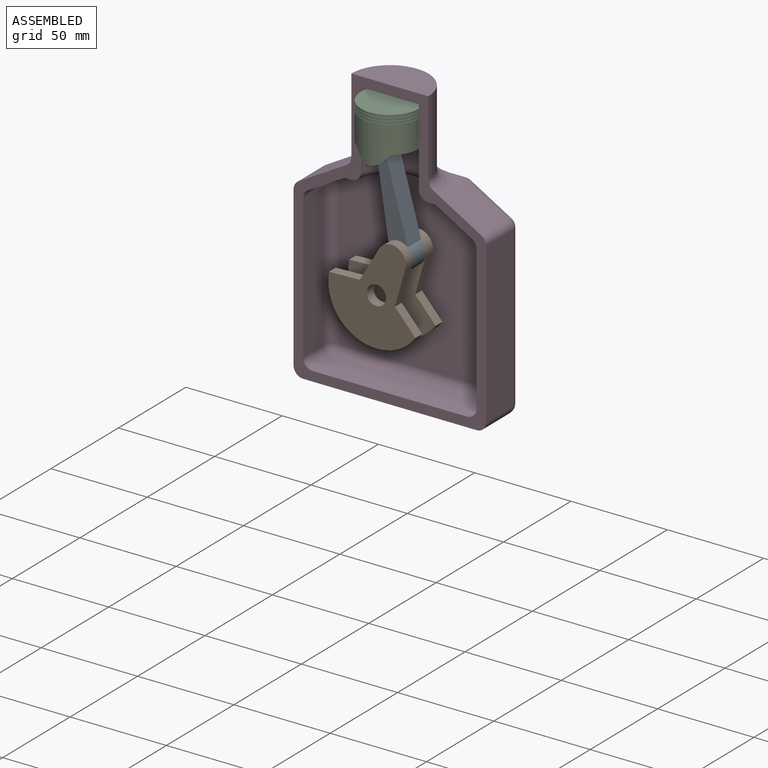
[diagram: assembled view]
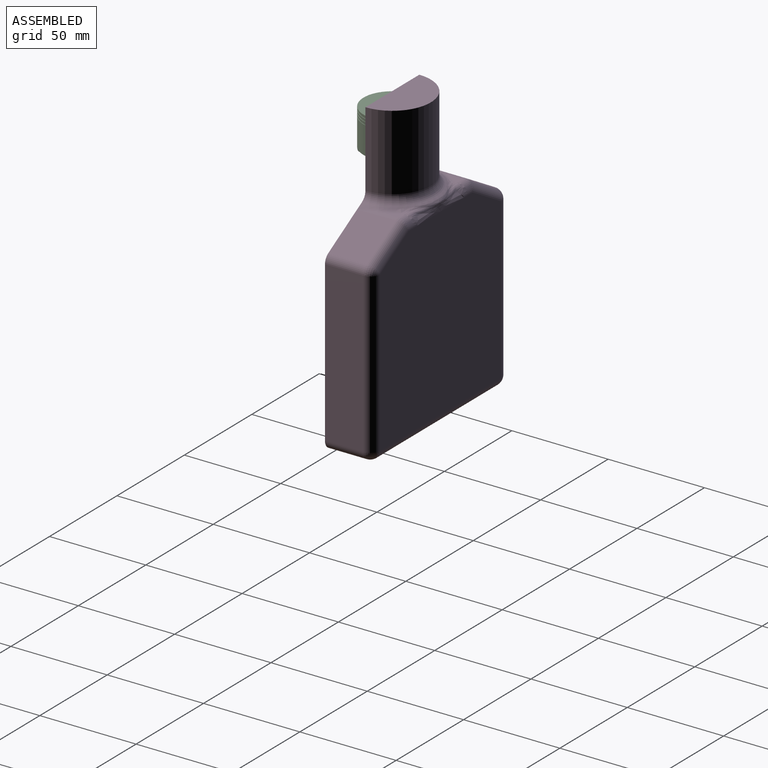
[diagram: assembled view, second angle]
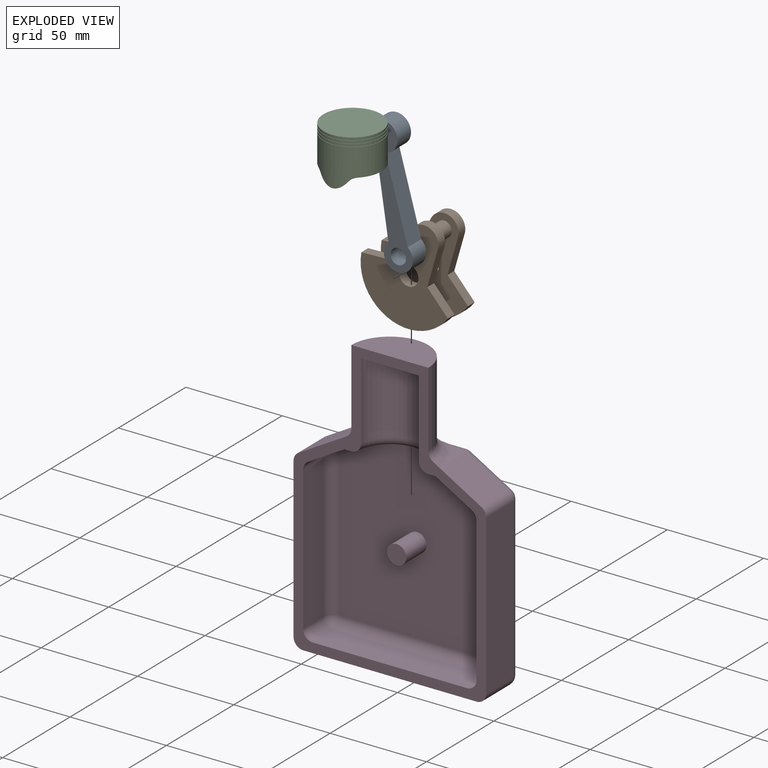
[diagram: exploded view]
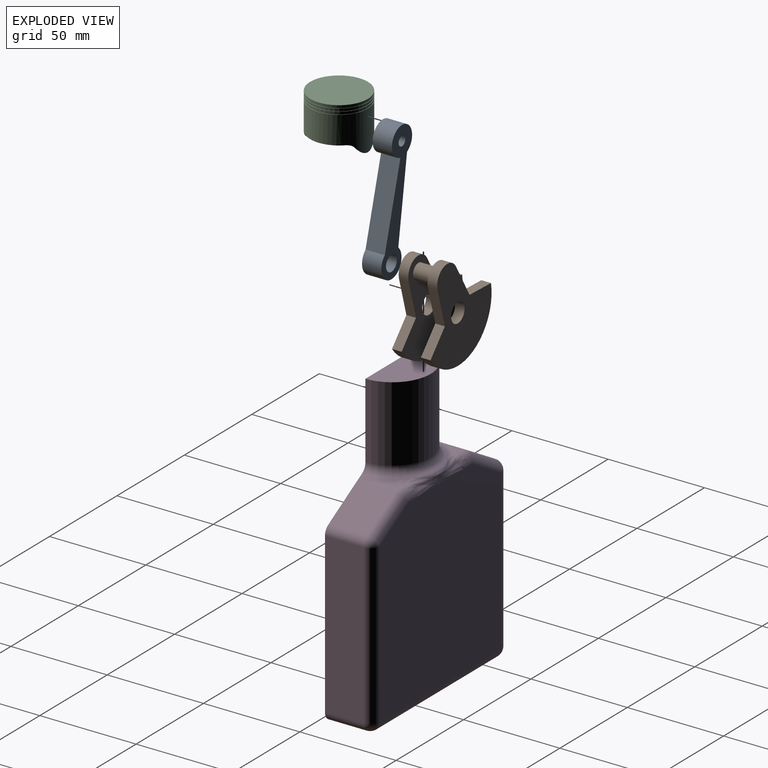
[diagram: exploded view, second angle]
ASSEMBLY  parts=4 mates=4
PART A: 8 faces, bbox 15.7x10x70 mm
  f0: plane 70x15.7mm, normal (0,1,0), area 578.1mm2, adj f1,f2,f4,f5,f6,f7
  f1: plane 42.94x10mm, normal (-1,0,0), area 429.4mm2, adj f0,f2,f3,f6
  f2: cylinder r=7.5mm len=15mm, axis (0,-1,0), area 361.8mm2, adj f0,f1,f3,f7
  f3: plane 70x15.7mm, normal (0,-1,0), area 578.1mm2, adj f1,f2,f4,f5,f6,f7
  f4: cylinder r=4mm len=10mm, axis (0,-1,0), area 251.3mm2, adj f0,f3
  f5: cylinder r=2.5mm len=10mm, axis (0,-1,0), area 157.1mm2, adj f0,f3
  f6: cylinder r=7.5mm len=15mm, axis (0,-1,0), area 420.3mm2, adj f0,f1,f3,f7
  f7: plane 42.64x10mm, normal (0.99,0,0.12), area 429.4mm2, adj f0,f2,f3,f6
PART B: 19 faces, bbox 48.7x20x52.5 mm
  f0: plane 14.69x6.24mm, normal (0.39,0,0.92), area 79.8mm2, adj f1,f5,f7,f8
  f1: plane 19.59x5mm, normal (0.99,0,0.16), area 99.2mm2, adj f0,f2,f7,f8
  f2: cylinder r=7.5mm len=14.87mm, axis (0,1,0), area 108.4mm2, adj f1,f3,f7,f8
  f3: plane 19.76x5mm, normal (-1,0,0.09), area 99.2mm2, adj f2,f4,f7,f8
  f4: plane 14.22x7.25mm, normal (-0.45,0,0.89), area 79.8mm2, adj f3,f5,f7,f8
  f5: cylinder r=25mm len=48.75mm, axis (0,1,0), area 337.3mm2, adj f0,f4,f7,f8
  f6: cylinder r=5mm len=10mm, axis (0,1,0), area 157.1mm2, adj f7,f8
  f7: plane 52.49x48.75mm, normal (0,-1,0), area 1278.3mm2, adj f0,f1,f2,f3,f4,f5,f6
  f8: plane 52.49x48.75mm, normal (0,1,0), area 1228mm2, adj f0,f1,f2,f3,f4,f5,f6,f18
  f9: plane 14.69x6.24mm, normal (0.39,0,0.92), area 79.8mm2, adj f10,f14,f16,f17
  f10: plane 19.59x5mm, normal (0.99,0,0.16), area 99.2mm2, adj f9,f11,f16,f17
  f11: cylinder r=7.5mm len=14.87mm, axis (0,-1,0), area 108.4mm2, adj f10,f12,f16,f17
  f12: plane 19.76x5mm, normal (-1,0,0.09), area 99.2mm2, adj f11,f13,f16,f17
  f13: plane 14.22x7.25mm, normal (-0.45,0,0.89), area 79.8mm2, adj f12,f14,f16,f17
  f14: cylinder r=25mm len=48.75mm, axis (0,-1,0), area 337.3mm2, adj f9,f13,f16,f17
  f15: cylinder r=5mm len=10mm, axis (0,-1,0), area 157.1mm2, adj f16,f17
  f16: plane 52.49x48.75mm, normal (0,1,0), area 1278.3mm2, adj f9,f10,f11,f12,f13,f14,f15
  f17: plane 52.49x48.75mm, normal (0,-1,0), area 1228mm2, adj f9,f10,f11,f12,f13,f14,f15,f18
  f18: cylinder r=4mm len=10mm, axis (0,1,0), area 251.3mm2, adj f8,f17
PART C: 37 faces, bbox 30x30x25 mm
  f0: cylinder r=15mm len=30mm, axis (0,0,1), area 94.2mm2, adj f2,f12
  f1: cylinder r=14.75mm len=29.5mm, axis (0,0,-1), area 46.3mm2, adj f2,f3
  f2: plane 30x30mm, normal (0,0,1), area 23.4mm2, adj f0,f1
  f3: plane 30x30mm, normal (0,0,-1), area 23.4mm2, adj f1,f9
  f4: plane 30x30mm, normal (0,0,1), area 706.9mm2, adj f5
  f5: cylinder r=15mm len=30mm, axis (0,0,1), area 94.2mm2, adj f4,f6
  f6: plane 30x30mm, normal (0,0,-1), area 23.4mm2, adj f5,f7
  f7: cylinder r=14.75mm len=29.5mm, axis (0,0,-1), area 46.3mm2, adj f6,f8
  f8: plane 30x30mm, normal (0,0,1), area 23.4mm2, adj f7,f9
  f9: cylinder r=15mm len=30mm, axis (0,0,1), area 94.2mm2, adj f3,f8
  f10: cylinder r=14.75mm len=29.5mm, axis (0,0,-1), area 46.3mm2, adj f11,f12
  f11: plane 30x30mm, normal (0,0,1), area 23.4mm2, adj f10,f35
  f12: plane 30x30mm, normal (0,0,-1), area 23.4mm2, adj f0,f10
  f13: plane 7.4x6.26mm, normal (0,0,-1), area 46.3mm2, adj f14,f19,f20
  f14: plane 6.26x1.1mm, normal (0,0.92,-0.39), area 5.1mm2, adj f13,f20
  f15: plane 6.26x1.1mm, normal (0,-0.92,-0.39), area 5.1mm2, adj f16,f23
  f16: plane 7.4x6.26mm, normal (0,0,-1), area 46.3mm2, adj f15,f17,f23
  f17: plane 11.9x10mm, normal (0,-1,0), area 94.9mm2, adj f16,f18,f22,f23,f24,f36
  f18: plane 10x10mm, normal (0,0,-1), area 100mm2, adj f17,f19,f22,f24
  f19: plane 11.9x10mm, normal (0,1,0), area 94.9mm2, adj f13,f18,f20,f22,f24,f36
  f20: cylinder r=5mm len=10mm, axis (0,-1,0), area 73.9mm2, adj f13,f14,f19,f22,f24,f26
  f21: plane 25.08x8.5mm, normal (0,0,-1), area 154.4mm2, adj f22,f26
  f22: plane 25.08x13.5mm, normal (-1,0,0), area 258.6mm2, adj f17,f18,f19,f20,f21,f23,f26
  f23: cylinder r=5mm len=10mm, axis (0,-1,0), area 73.9mm2, adj f15,f16,f17,f22,f24,f26
  f24: plane 25.08x13.5mm, normal (1,0,0), area 258.6mm2, adj f17,f18,f19,f20,f23,f25,f26
  f25: plane 25.08x8.5mm, normal (0,0,-1), area 154.4mm2, adj f24,f26
  f26: cylinder r=13.5mm len=27mm, axis (0,0,1), area 1161.6mm2, adj f20,f21,f22,f23,f24,f25,f27,f28
  f27: cylinder r=2.5mm len=7mm, axis (-1,0,0), area 8.7mm2, adj f26,f28,f34,f35
  f28: plane 21.5x6.83mm, normal (0,0,-1), area 36.6mm2, adj f26,f27,f29,f35
  f29: cylinder r=2.5mm len=7mm, axis (-1,0,0), area 8.7mm2, adj f26,f28,f30,f35
  f30: plane 14.8x4.58mm, normal (0,0.92,-0.39), area 44.5mm2, adj f26,f29,f31,f35
  f31: cylinder r=2.5mm len=7mm, axis (-1,0,0), area 8.7mm2, adj f26,f30,f32,f35
  f32: plane 21.5x6.83mm, normal (0,0,-1), area 36.6mm2, adj f26,f31,f33,f35
  f33: cylinder r=2.5mm len=7mm, axis (-1,0,0), area 8.7mm2, adj f26,f32,f34,f35
  f34: plane 14.8x4.58mm, normal (0,-0.92,-0.39), area 44.5mm2, adj f26,f27,f33,f35
  f35: cylinder r=15mm len=30mm, axis (0,0,1), area 1505.4mm2, adj f11,f27,f28,f29,f30,f31,f32,f33
  f36: cylinder r=2.5mm len=10mm, axis (0,1,0), area 157.1mm2, adj f17,f19
PART D: 72 faces, bbox 103.6x30.7x153.6 mm
  f0: plane 27.3x23.64mm, normal (0,0,-1), area 148.3mm2, adj f3,f10,f21,f63,f67
  f1: plane 95x90mm, normal (0,1,0), area 8287.1mm2, adj f35,f46,f47,f48,f49,f50,f53,f54
  f2: plane 74.79x15mm, normal (-1,0,0), area 1121.9mm2, adj f10,f22,f26,f69
  f3: plane 18.84x15mm, normal (-0.5,0,-0.87), area 326.3mm2, adj f0,f10,f67,f69
  f4: plane 18.84x15mm, normal (0.5,0,-0.87), area 326.3mm2, adj f10,f20,f64,f66
  f5: cylinder r=15mm len=39.95mm, axis (0,0,-1), area 1882.5mm2, adj f9,f10,f63
  f6: cone r=20mm half-angle=60deg, axis (0,0,-1), area 142.6mm2, adj f10,f37,f38,f40,f41,f42,f43,f44
  f7: cylinder r=20mm len=40mm, axis (0,0,-1), area 2461.4mm2, adj f8,f10,f62
  f8: plane 40x20mm, normal (0,0,1), area 628.3mm2, adj f7,f10
  f9: plane 30x15mm, normal (0,0,-1), area 353.4mm2, adj f5,f10
  f10: plane 149.95x100mm, normal (0,-1,0), area 2307.9mm2, adj f0,f2,f3,f4,f5,f6,f7,f8
  f11: plane 8.54x4.68mm, normal (0,0,1), area 21.2mm2, adj f32,f42,f44,f48,f50
  f12: plane 82.68x20mm, normal (1,0,0), area 1653.6mm2, adj f10,f23,f31,f58
  f13: plane 21.34x20mm, normal (0.5,0,0.87), area 492.8mm2, adj f10,f31,f32,f54
  f14: plane 80x15mm, normal (0,0,1), area 1200mm2, adj f10,f22,f24,f28
  f15: plane 90x20mm, normal (0,0,-1), area 1800mm2, adj f10,f23,f25,f61
  f16: plane 8.54x4.68mm, normal (0,0,1), area 21.2mm2, adj f33,f43,f45,f47,f49
  f17: plane 82.68x20mm, normal (-1,0,0), area 1653.6mm2, adj f10,f25,f34,f57
  f18: plane 21.34x20mm, normal (-0.5,0,0.87), area 492.8mm2, adj f10,f33,f34,f53
  f19: plane 74.79x15mm, normal (1,0,0), area 1121.9mm2, adj f10,f24,f30,f66
  f20: plane 27.3x23.64mm, normal (0,0,-1), area 148.3mm2, adj f4,f10,f21,f63,f64
  f21: plane 90x80mm, normal (0,-1,0), area 6720.9mm2, adj f0,f20,f26,f28,f30,f64,f67,f71
  f22: cylinder r=5mm len=15mm, axis (0,1,0), area 117.8mm2, adj f2,f10,f14,f27
  f23: cylinder r=5mm len=20mm, axis (0,-1,0), area 157.1mm2, adj f10,f12,f15,f60
  f24: cylinder r=5mm len=15mm, axis (0,1,0), area 117.8mm2, adj f10,f14,f19,f29
  f25: cylinder r=5mm len=20mm, axis (0,-1,0), area 157.1mm2, adj f10,f15,f17,f59
  f26: cylinder r=5mm len=74.79mm, axis (0,0,-1), area 587.4mm2, adj f2,f21,f27,f68
  f27: sphere r=5mm, area 53.5mm2, adj f22,f26,f28
  f28: cylinder r=5mm len=80mm, axis (1,0,0), area 628.3mm2, adj f14,f21,f27,f29
  f29: sphere r=5mm, area 39.3mm2, adj f24,f28,f30
  f30: cylinder r=5mm len=74.79mm, axis (0,0,-1), area 587.4mm2, adj f19,f21,f29,f65
  f31: cylinder r=5mm len=20mm, axis (0,-1,0), area 104.7mm2, adj f10,f12,f13,f56
  f32: cylinder r=5mm len=20mm, axis (0,1,0), area 37.2mm2, adj f11,f13,f40,f52
  f33: cylinder r=5mm len=20mm, axis (0,1,0), area 37.2mm2, adj f16,f18,f41,f51
  f34: cylinder r=5mm len=20mm, axis (0,-1,0), area 104.7mm2, adj f10,f17,f18,f55
  f35: bspline ~18.24x3.67mm, area 62.4mm2, adj f1,f36,f46,f47
  f36: bspline ~19.25x6.01mm, area 44.6mm2, adj f35,f37,f45,f47
  f37: bspline ~17.71x6.89mm, area 25.6mm2, adj f6,f36,f38,f45
  f38: bspline ~17.71x6.89mm, area 25.6mm2, adj f6,f37,f39,f44
  f39: bspline ~19.25x6.01mm, area 44.6mm2, adj f38,f44,f46,f48
  f40: bspline ~11.57x4.75mm, area 10.1mm2, adj f6,f32,f42
  f41: bspline ~16.4x6.89mm, area 10.1mm2, adj f6,f33,f43
  f42: torus R=26.34mm, axis (0,0,-1), area 14.4mm2, adj f6,f11,f40,f44
  f43: torus R=26.34mm, axis (0,0,-1), area 14.4mm2, adj f6,f16,f41,f45
  f44: bspline ~5.06x4.65mm, area 11.6mm2, adj f6,f11,f38,f39,f42
  f45: bspline ~5.06x4.65mm, area 11.6mm2, adj f6,f16,f36,f37,f43
  f46: bspline ~18.24x3.67mm, area 62.4mm2, adj f1,f35,f39,f48
  f47: bspline ~5.46x5mm, area 17.7mm2, adj f1,f16,f35,f36,f49
  f48: bspline ~5.46x5mm, area 17.7mm2, adj f1,f11,f39,f46,f50
  f49: cylinder r=5mm len=5mm, axis (-1,0,0), area 25.6mm2, adj f1,f16,f47,f51
  f50: cylinder r=5mm len=5mm, axis (1,0,0), area 25.6mm2, adj f1,f11,f48,f52
  f51: sphere r=5mm, area 13.1mm2, adj f33,f49,f53
  f52: sphere r=5mm, area 13.1mm2, adj f32,f50,f54
  f53: cylinder r=5mm len=23.84mm, axis (-0.87,0,-0.5), area 193.5mm2, adj f1,f18,f51,f55
  f54: cylinder r=5mm len=23.84mm, axis (0.87,0,-0.5), area 193.5mm2, adj f1,f13,f52,f56
  f55: sphere r=5mm, area 26.2mm2, adj f34,f53,f57
  f56: sphere r=5mm, area 16.7mm2, adj f31,f54,f58
  f57: cylinder r=5mm len=82.68mm, axis (0,0,-1), area 649.4mm2, adj f1,f17,f55,f59
  f58: cylinder r=5mm len=82.68mm, axis (0,0,-1), area 649.4mm2, adj f1,f12,f56,f60
  f59: sphere r=5mm, area 39.3mm2, adj f25,f57,f61
  f60: sphere r=5mm, area 39.3mm2, adj f23,f58,f61
  f61: cylinder r=5mm len=90mm, axis (-1,0,0), area 706.9mm2, adj f1,f15,f59,f60
  f62: torus R=25mm, axis (0,0,-1), area 343.2mm2, adj f6,f7,f10
  f63: torus R=20mm, axis (0,0,1), area 414.9mm2, adj f0,f5,f10,f20
  f64: cylinder r=5mm len=28.84mm, axis (0.87,0,0.5), area 204.9mm2, adj f4,f20,f21,f65
  f65: sphere r=5mm, area 29.2mm2, adj f30,f64,f66
  f66: cylinder r=5mm len=15mm, axis (0,1,0), area 78.5mm2, adj f4,f10,f19,f65
  f67: cylinder r=5mm len=28.84mm, axis (0.87,0,-0.5), area 204.9mm2, adj f0,f3,f21,f68
  f68: sphere r=5mm, area 29.2mm2, adj f26,f67,f69
  f69: cylinder r=5mm len=15mm, axis (0,1,0), area 78.5mm2, adj f2,f3,f10,f68
  f70: plane 10x10mm, normal (0,-1,0), area 78.5mm2, adj f71
  f71: cylinder r=5mm len=15mm, axis (0,1,0), area 471.2mm2, adj f21,f70
PLACE A rot(axis=(0,-1,0),8.9deg) t=(2.83,-43.11,74)mm
PLACE B rot(axis=(0,1,0),25.1deg) t=(-8.82,-43.11,75.24)mm
PLACE C t=(-8.82,-43.11,73.09)mm
PLACE D t=(-8.82,-43.11,75.24)mm fixed
MATE slider D.f5 <-> C.f1  axis (0,0,-1) through (-8.82,-43.11,165.19)mm
MATE revolute C.f20 <-> A.f5  axis (0,1,0) through (-8.82,-43.11,148.07)mm
MATE revolute B.f5 <-> D.f71  axis (0,-1,0) through (-8.82,-38.11,75.24)mm
MATE revolute B.f2 <-> A.f2  axis (0,1,0) through (-0.96,-43.11,93.63)mm
